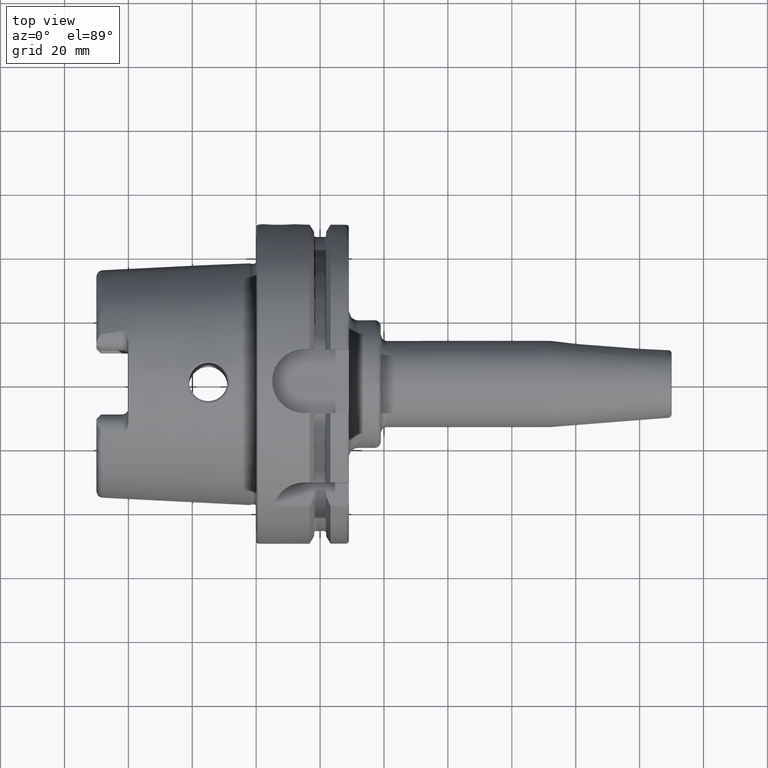
[diagram: clean part render]
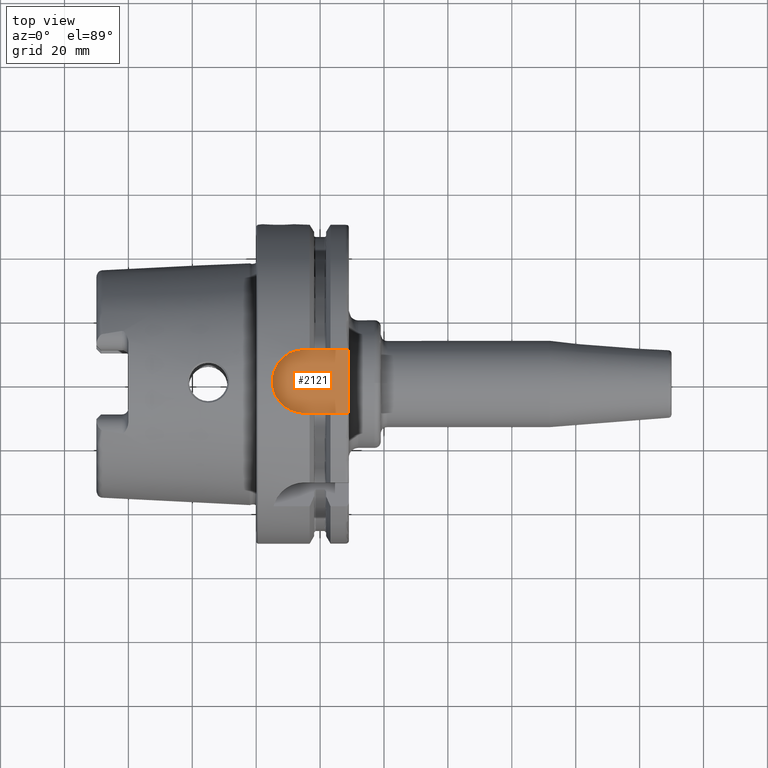
[diagram: same view with one face highlighted and labeled with its STEP entity id]
A machine part, top view. The second image highlights one B-rep face of the part: STEP entity #2121.
In plain terms, the highlighted planar face has unit normal (0, 0, 1).
Its self-contained STEP definition (entity closure, byte-faithful):
#125=PLANE('',#2368);
#291=FACE_OUTER_BOUND('',#425,.T.);
#425=EDGE_LOOP('',(#1813,#1814,#1815,#1816));
#489=LINE('',#3210,#597);
#561=LINE('',#4456,#669);
#564=LINE('',#4463,#672);
#597=VECTOR('',#2567,10.);
#669=VECTOR('',#2899,10.);
#672=VECTOR('',#2908,10.);
#783=CIRCLE('',#2366,10.);
#863=VERTEX_POINT('',#3207);
#864=VERTEX_POINT('',#3209);
#1012=VERTEX_POINT('',#4455);
#1013=VERTEX_POINT('',#4459);
#1087=EDGE_CURVE('',#863,#864,#489,.T.);
#1295=EDGE_CURVE('',#1012,#864,#561,.T.);
#1297=EDGE_CURVE('',#1013,#1012,#783,.T.);
#1299=EDGE_CURVE('',#863,#1013,#564,.T.);
#1813=ORIENTED_EDGE('',*,*,#1299,.T.);
#1814=ORIENTED_EDGE('',*,*,#1297,.T.);
#1815=ORIENTED_EDGE('',*,*,#1295,.T.);
#1816=ORIENTED_EDGE('',*,*,#1087,.F.);
#2121=ADVANCED_FACE('',(#291),#125,.T.);
#2366=AXIS2_PLACEMENT_3D('',#4460,#2903,#2904);
#2368=AXIS2_PLACEMENT_3D('',#4464,#2909,#2910);
#2567=DIRECTION('',(0.,-1.,0.));
#2899=DIRECTION('',(1.,7.93016446160826E-17,0.));
#2903=DIRECTION('center_axis',(0.,0.,1.));
#2904=DIRECTION('ref_axis',(0.,1.,0.));
#2908=DIRECTION('',(-1.,0.,0.));
#2909=DIRECTION('center_axis',(0.,0.,1.));
#2910=DIRECTION('ref_axis',(1.,0.,0.));
#3207=CARTESIAN_POINT('',(29.,10.,44.));
#3209=CARTESIAN_POINT('',(29.,-10.,44.));
#3210=CARTESIAN_POINT('',(29.,0.,44.));
#4455=CARTESIAN_POINT('',(15.,-10.,44.));
#4456=CARTESIAN_POINT('',(15.,-10.,44.));
#4459=CARTESIAN_POINT('',(15.,10.,44.));
#4460=CARTESIAN_POINT('Origin',(15.,0.,44.));
#4463=CARTESIAN_POINT('',(29.,10.,44.));
#4464=CARTESIAN_POINT('Origin',(17.,0.,44.));